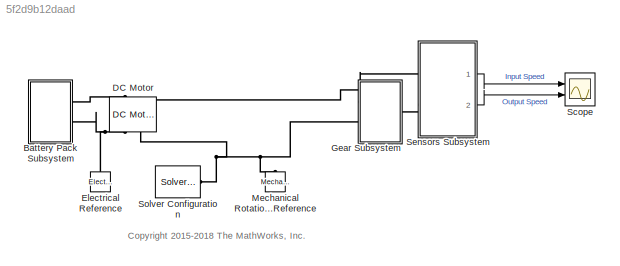
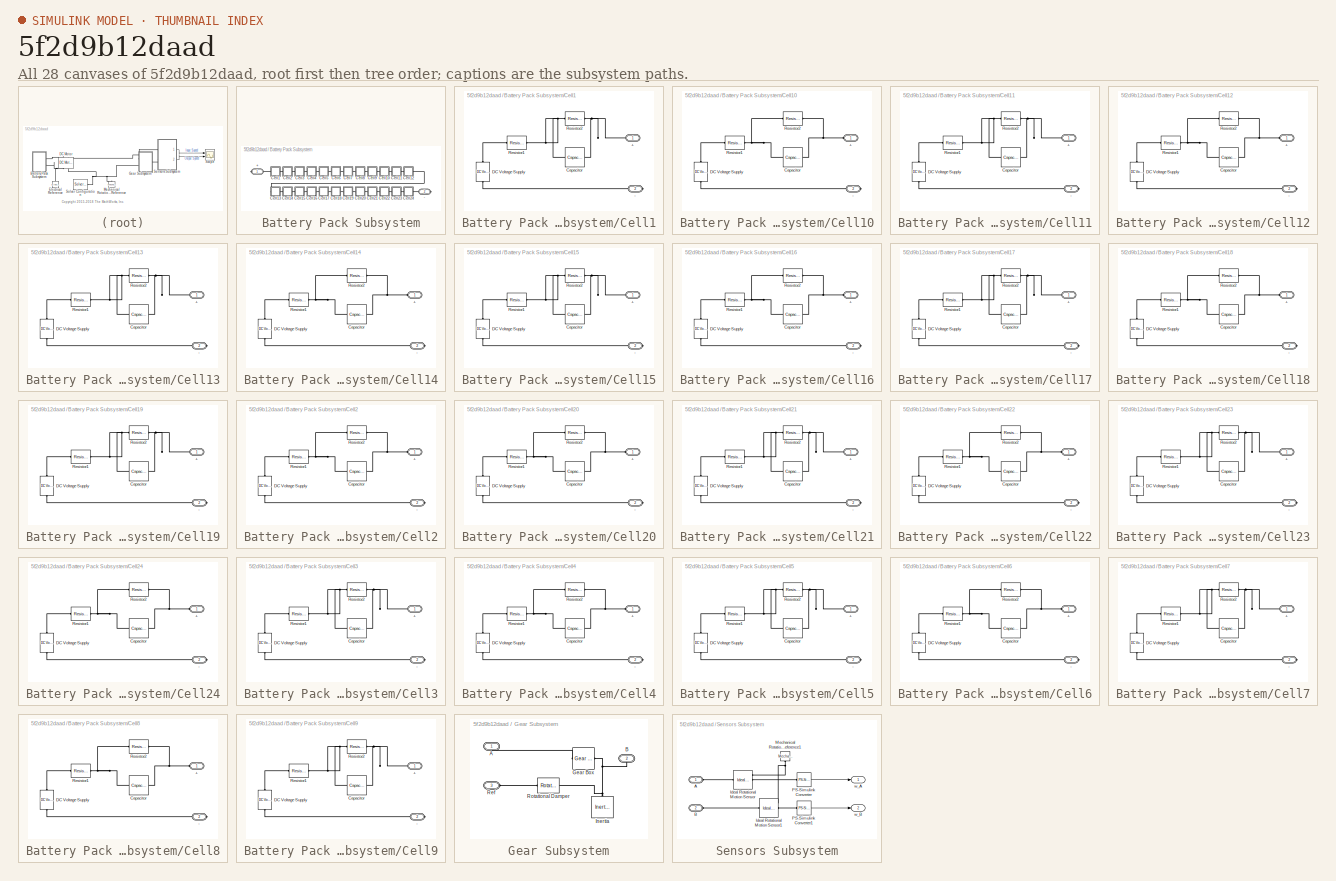
[diagram: thumbnail index - all 28 canvases of the model, root first then tree order]
MODEL slx_5f2d9b12daad
KIND model
CONFIG AbsTol = 1e-3
CONFIG EnableMultiTasking = on
CONFIG FixedStep = auto
CONFIG MaxStep = auto
CONFIG MinStep = auto
CONFIG RelTol = 1e-3
CONFIG SampleTimeConstraint = Unconstrained
CONFIG Solver = ode23t
CONFIG SolverName = ode23t
CONFIG StartTime = 0.0
CONFIG StopTime = 10.0
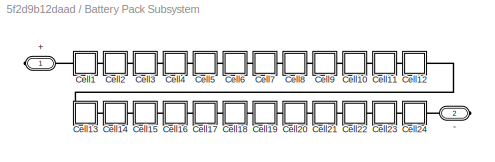
BLOCK [SubSystem] Battery Pack Subsystem
  Ports = [0, 0, 0, 0, 0, 0, 2]
  RequestExecContextInheritance = off
  Variant = off
BLOCK [PMIOPort] Battery Pack Subsystem/+
  Port = 1
  Side = Right
BLOCK [PMIOPort] Battery Pack Subsystem/-
  Port = 2
  Side = Right
BLOCK [SubSystem] Battery Pack Subsystem/Cell1
  Ports = [0, 0, 0, 0, 0, 1, 1]
  RequestExecContextInheritance = off
  Variant = off
BLOCK [PMIOPort] Battery Pack Subsystem/Cell1/+
  Port = 1
  Side = Left
BLOCK [PMIOPort] Battery Pack Subsystem/Cell1/-
  Port = 2
  Side = Right
BLOCK [Reference] Battery Pack Subsystem/Cell1/Capacitor  REF=fl_lib/Electrical/Electrical Elements/Capacitor
  Ports = [0, 0, 0, 0, 0, 1, 1]
  SourceBlock = fl_lib/Electrical/Electrical Elements/Capacitor
  SourceProductBaseCode = SS
  SourceProductName = Simscape
  SourceType = Capacitor
BLOCK [Reference] Battery Pack Subsystem/Cell1/DC Voltage Supply  REF=fl_lib/Electrical/Electrical Sources/DC Voltage Source
  Ports = [0, 0, 0, 0, 0, 1, 1]
  SourceBlock = fl_lib/Electrical/Electrical Sources/DC Voltage Source
  SourceProductBaseCode = SS
  SourceProductName = Simscape
  SourceType = DC Voltage Source
BLOCK [Reference] Battery Pack Subsystem/Cell1/Resistor1  REF=fl_lib/Electrical/Electrical Elements/Resistor
  Ports = [0, 0, 0, 0, 0, 1, 1]
  SourceBlock = fl_lib/Electrical/Electrical Elements/Resistor
  SourceProductBaseCode = SS
  SourceProductName = Simscape
  SourceType = Resistor
BLOCK [Reference] Battery Pack Subsystem/Cell1/Resistor2  REF=fl_lib/Electrical/Electrical Elements/Resistor
  Ports = [0, 0, 0, 0, 0, 1, 1]
  SourceBlock = fl_lib/Electrical/Electrical Elements/Resistor
  SourceProductBaseCode = SS
  SourceProductName = Simscape
  SourceType = Resistor
BLOCK [SubSystem] Battery Pack Subsystem/Cell10
  Ports = [0, 0, 0, 0, 0, 1, 1]
  RequestExecContextInheritance = off
  Variant = off
BLOCK [PMIOPort] Battery Pack Subsystem/Cell10/+
  Port = 1
  Side = Left
BLOCK [PMIOPort] Battery Pack Subsystem/Cell10/-
  Port = 2
  Side = Right
BLOCK [Reference] Battery Pack Subsystem/Cell10/Capacitor  REF=fl_lib/Electrical/Electrical Elements/Capacitor
  Ports = [0, 0, 0, 0, 0, 1, 1]
  SourceBlock = fl_lib/Electrical/Electrical Elements/Capacitor
  SourceProductBaseCode = SS
  SourceProductName = Simscape
  SourceType = Capacitor
BLOCK [Reference] Battery Pack Subsystem/Cell10/DC Voltage Supply  REF=fl_lib/Electrical/Electrical Sources/DC Voltage Source
  Ports = [0, 0, 0, 0, 0, 1, 1]
  SourceBlock = fl_lib/Electrical/Electrical Sources/DC Voltage Source
  SourceProductBaseCode = SS
  SourceProductName = Simscape
  SourceType = DC Voltage Source
BLOCK [Reference] Battery Pack Subsystem/Cell10/Resistor1  REF=fl_lib/Electrical/Electrical Elements/Resistor
  Ports = [0, 0, 0, 0, 0, 1, 1]
  SourceBlock = fl_lib/Electrical/Electrical Elements/Resistor
  SourceProductBaseCode = SS
  SourceProductName = Simscape
  SourceType = Resistor
BLOCK [Reference] Battery Pack Subsystem/Cell10/Resistor2  REF=fl_lib/Electrical/Electrical Elements/Resistor
  Ports = [0, 0, 0, 0, 0, 1, 1]
  SourceBlock = fl_lib/Electrical/Electrical Elements/Resistor
  SourceProductBaseCode = SS
  SourceProductName = Simscape
  SourceType = Resistor
BLOCK [SubSystem] Battery Pack Subsystem/Cell11
  Ports = [0, 0, 0, 0, 0, 1, 1]
  RequestExecContextInheritance = off
  Variant = off
BLOCK [PMIOPort] Battery Pack Subsystem/Cell11/+
  Port = 1
  Side = Left
BLOCK [PMIOPort] Battery Pack Subsystem/Cell11/-
  Port = 2
  Side = Right
BLOCK [Reference] Battery Pack Subsystem/Cell11/Capacitor  REF=fl_lib/Electrical/Electrical Elements/Capacitor
  Ports = [0, 0, 0, 0, 0, 1, 1]
  SourceBlock = fl_lib/Electrical/Electrical Elements/Capacitor
  SourceProductBaseCode = SS
  SourceProductName = Simscape
  SourceType = Capacitor
BLOCK [Reference] Battery Pack Subsystem/Cell11/DC Voltage Supply  REF=fl_lib/Electrical/Electrical Sources/DC Voltage Source
  Ports = [0, 0, 0, 0, 0, 1, 1]
  SourceBlock = fl_lib/Electrical/Electrical Sources/DC Voltage Source
  SourceProductBaseCode = SS
  SourceProductName = Simscape
  SourceType = DC Voltage Source
BLOCK [Reference] Battery Pack Subsystem/Cell11/Resistor1  REF=fl_lib/Electrical/Electrical Elements/Resistor
  Ports = [0, 0, 0, 0, 0, 1, 1]
  SourceBlock = fl_lib/Electrical/Electrical Elements/Resistor
  SourceProductBaseCode = SS
  SourceProductName = Simscape
  SourceType = Resistor
BLOCK [Reference] Battery Pack Subsystem/Cell11/Resistor2  REF=fl_lib/Electrical/Electrical Elements/Resistor
  Ports = [0, 0, 0, 0, 0, 1, 1]
  SourceBlock = fl_lib/Electrical/Electrical Elements/Resistor
  SourceProductBaseCode = SS
  SourceProductName = Simscape
  SourceType = Resistor
BLOCK [SubSystem] Battery Pack Subsystem/Cell12
  Ports = [0, 0, 0, 0, 0, 1, 1]
  RequestExecContextInheritance = off
  Variant = off
BLOCK [PMIOPort] Battery Pack Subsystem/Cell12/+
  Port = 1
  Side = Left
BLOCK [PMIOPort] Battery Pack Subsystem/Cell12/-
  Port = 2
  Side = Right
BLOCK [Reference] Battery Pack Subsystem/Cell12/Capacitor  REF=fl_lib/Electrical/Electrical Elements/Capacitor
  Ports = [0, 0, 0, 0, 0, 1, 1]
  SourceBlock = fl_lib/Electrical/Electrical Elements/Capacitor
  SourceProductBaseCode = SS
  SourceProductName = Simscape
  SourceType = Capacitor
BLOCK [Reference] Battery Pack Subsystem/Cell12/DC Voltage Supply  REF=fl_lib/Electrical/Electrical Sources/DC Voltage Source
  Ports = [0, 0, 0, 0, 0, 1, 1]
  SourceBlock = fl_lib/Electrical/Electrical Sources/DC Voltage Source
  SourceProductBaseCode = SS
  SourceProductName = Simscape
  SourceType = DC Voltage Source
BLOCK [Reference] Battery Pack Subsystem/Cell12/Resistor1  REF=fl_lib/Electrical/Electrical Elements/Resistor
  Ports = [0, 0, 0, 0, 0, 1, 1]
  SourceBlock = fl_lib/Electrical/Electrical Elements/Resistor
  SourceProductBaseCode = SS
  SourceProductName = Simscape
  SourceType = Resistor
BLOCK [Reference] Battery Pack Subsystem/Cell12/Resistor2  REF=fl_lib/Electrical/Electrical Elements/Resistor
  Ports = [0, 0, 0, 0, 0, 1, 1]
  SourceBlock = fl_lib/Electrical/Electrical Elements/Resistor
  SourceProductBaseCode = SS
  SourceProductName = Simscape
  SourceType = Resistor
BLOCK [SubSystem] Battery Pack Subsystem/Cell13
  Ports = [0, 0, 0, 0, 0, 1, 1]
  RequestExecContextInheritance = off
  Variant = off
BLOCK [PMIOPort] Battery Pack Subsystem/Cell13/+
  Port = 1
  Side = Left
BLOCK [PMIOPort] Battery Pack Subsystem/Cell13/-
  Port = 2
  Side = Right
BLOCK [Reference] Battery Pack Subsystem/Cell13/Capacitor  REF=fl_lib/Electrical/Electrical Elements/Capacitor
  Ports = [0, 0, 0, 0, 0, 1, 1]
  SourceBlock = fl_lib/Electrical/Electrical Elements/Capacitor
  SourceProductBaseCode = SS
  SourceProductName = Simscape
  SourceType = Capacitor
BLOCK [Reference] Battery Pack Subsystem/Cell13/DC Voltage Supply  REF=fl_lib/Electrical/Electrical Sources/DC Voltage Source
  Ports = [0, 0, 0, 0, 0, 1, 1]
  SourceBlock = fl_lib/Electrical/Electrical Sources/DC Voltage Source
  SourceProductBaseCode = SS
  SourceProductName = Simscape
  SourceType = DC Voltage Source
BLOCK [Reference] Battery Pack Subsystem/Cell13/Resistor1  REF=fl_lib/Electrical/Electrical Elements/Resistor
  Ports = [0, 0, 0, 0, 0, 1, 1]
  SourceBlock = fl_lib/Electrical/Electrical Elements/Resistor
  SourceProductBaseCode = SS
  SourceProductName = Simscape
  SourceType = Resistor
BLOCK [Reference] Battery Pack Subsystem/Cell13/Resistor2  REF=fl_lib/Electrical/Electrical Elements/Resistor
  Ports = [0, 0, 0, 0, 0, 1, 1]
  SourceBlock = fl_lib/Electrical/Electrical Elements/Resistor
  SourceProductBaseCode = SS
  SourceProductName = Simscape
  SourceType = Resistor
BLOCK [SubSystem] Battery Pack Subsystem/Cell14
  Ports = [0, 0, 0, 0, 0, 1, 1]
  RequestExecContextInheritance = off
  Variant = off
BLOCK [PMIOPort] Battery Pack Subsystem/Cell14/+
  Port = 1
  Side = Left
BLOCK [PMIOPort] Battery Pack Subsystem/Cell14/-
  Port = 2
  Side = Right
BLOCK [Reference] Battery Pack Subsystem/Cell14/Capacitor  REF=fl_lib/Electrical/Electrical Elements/Capacitor
  Ports = [0, 0, 0, 0, 0, 1, 1]
  SourceBlock = fl_lib/Electrical/Electrical Elements/Capacitor
  SourceProductBaseCode = SS
  SourceProductName = Simscape
  SourceType = Capacitor
BLOCK [Reference] Battery Pack Subsystem/Cell14/DC Voltage Supply  REF=fl_lib/Electrical/Electrical Sources/DC Voltage Source
  Ports = [0, 0, 0, 0, 0, 1, 1]
  SourceBlock = fl_lib/Electrical/Electrical Sources/DC Voltage Source
  SourceProductBaseCode = SS
  SourceProductName = Simscape
  SourceType = DC Voltage Source
BLOCK [Reference] Battery Pack Subsystem/Cell14/Resistor1  REF=fl_lib/Electrical/Electrical Elements/Resistor
  Ports = [0, 0, 0, 0, 0, 1, 1]
  SourceBlock = fl_lib/Electrical/Electrical Elements/Resistor
  SourceProductBaseCode = SS
  SourceProductName = Simscape
  SourceType = Resistor
BLOCK [Reference] Battery Pack Subsystem/Cell14/Resistor2  REF=fl_lib/Electrical/Electrical Elements/Resistor
  Ports = [0, 0, 0, 0, 0, 1, 1]
  SourceBlock = fl_lib/Electrical/Electrical Elements/Resistor
  SourceProductBaseCode = SS
  SourceProductName = Simscape
  SourceType = Resistor
BLOCK [SubSystem] Battery Pack Subsystem/Cell15
  Ports = [0, 0, 0, 0, 0, 1, 1]
  RequestExecContextInheritance = off
  Variant = off
BLOCK [PMIOPort] Battery Pack Subsystem/Cell15/+
  Port = 1
  Side = Left
BLOCK [PMIOPort] Battery Pack Subsystem/Cell15/-
  Port = 2
  Side = Right
BLOCK [Reference] Battery Pack Subsystem/Cell15/Capacitor  REF=fl_lib/Electrical/Electrical Elements/Capacitor
  Ports = [0, 0, 0, 0, 0, 1, 1]
  SourceBlock = fl_lib/Electrical/Electrical Elements/Capacitor
  SourceProductBaseCode = SS
  SourceProductName = Simscape
  SourceType = Capacitor
BLOCK [Reference] Battery Pack Subsystem/Cell15/DC Voltage Supply  REF=fl_lib/Electrical/Electrical Sources/DC Voltage Source
  Ports = [0, 0, 0, 0, 0, 1, 1]
  SourceBlock = fl_lib/Electrical/Electrical Sources/DC Voltage Source
  SourceProductBaseCode = SS
  SourceProductName = Simscape
  SourceType = DC Voltage Source
BLOCK [Reference] Battery Pack Subsystem/Cell15/Resistor1  REF=fl_lib/Electrical/Electrical Elements/Resistor
  Ports = [0, 0, 0, 0, 0, 1, 1]
  SourceBlock = fl_lib/Electrical/Electrical Elements/Resistor
  SourceProductBaseCode = SS
  SourceProductName = Simscape
  SourceType = Resistor
BLOCK [Reference] Battery Pack Subsystem/Cell15/Resistor2  REF=fl_lib/Electrical/Electrical Elements/Resistor
  Ports = [0, 0, 0, 0, 0, 1, 1]
  SourceBlock = fl_lib/Electrical/Electrical Elements/Resistor
  SourceProductBaseCode = SS
  SourceProductName = Simscape
  SourceType = Resistor
BLOCK [SubSystem] Battery Pack Subsystem/Cell16
  Ports = [0, 0, 0, 0, 0, 1, 1]
  RequestExecContextInheritance = off
  Variant = off
BLOCK [PMIOPort] Battery Pack Subsystem/Cell16/+
  Port = 1
  Side = Left
BLOCK [PMIOPort] Battery Pack Subsystem/Cell16/-
  Port = 2
  Side = Right
BLOCK [Reference] Battery Pack Subsystem/Cell16/Capacitor  REF=fl_lib/Electrical/Electrical Elements/Capacitor
  Ports = [0, 0, 0, 0, 0, 1, 1]
  SourceBlock = fl_lib/Electrical/Electrical Elements/Capacitor
  SourceProductBaseCode = SS
  SourceProductName = Simscape
  SourceType = Capacitor
BLOCK [Reference] Battery Pack Subsystem/Cell16/DC Voltage Supply  REF=fl_lib/Electrical/Electrical Sources/DC Voltage Source
  Ports = [0, 0, 0, 0, 0, 1, 1]
  SourceBlock = fl_lib/Electrical/Electrical Sources/DC Voltage Source
  SourceProductBaseCode = SS
  SourceProductName = Simscape
  SourceType = DC Voltage Source
BLOCK [Reference] Battery Pack Subsystem/Cell16/Resistor1  REF=fl_lib/Electrical/Electrical Elements/Resistor
  Ports = [0, 0, 0, 0, 0, 1, 1]
  SourceBlock = fl_lib/Electrical/Electrical Elements/Resistor
  SourceProductBaseCode = SS
  SourceProductName = Simscape
  SourceType = Resistor
BLOCK [Reference] Battery Pack Subsystem/Cell16/Resistor2  REF=fl_lib/Electrical/Electrical Elements/Resistor
  Ports = [0, 0, 0, 0, 0, 1, 1]
  SourceBlock = fl_lib/Electrical/Electrical Elements/Resistor
  SourceProductBaseCode = SS
  SourceProductName = Simscape
  SourceType = Resistor
BLOCK [SubSystem] Battery Pack Subsystem/Cell17
  Ports = [0, 0, 0, 0, 0, 1, 1]
  RequestExecContextInheritance = off
  Variant = off
BLOCK [PMIOPort] Battery Pack Subsystem/Cell17/+
  Port = 1
  Side = Left
BLOCK [PMIOPort] Battery Pack Subsystem/Cell17/-
  Port = 2
  Side = Right
BLOCK [Reference] Battery Pack Subsystem/Cell17/Capacitor  REF=fl_lib/Electrical/Electrical Elements/Capacitor
  Ports = [0, 0, 0, 0, 0, 1, 1]
  SourceBlock = fl_lib/Electrical/Electrical Elements/Capacitor
  SourceProductBaseCode = SS
  SourceProductName = Simscape
  SourceType = Capacitor
BLOCK [Reference] Battery Pack Subsystem/Cell17/DC Voltage Supply  REF=fl_lib/Electrical/Electrical Sources/DC Voltage Source
  Ports = [0, 0, 0, 0, 0, 1, 1]
  SourceBlock = fl_lib/Electrical/Electrical Sources/DC Voltage Source
  SourceProductBaseCode = SS
  SourceProductName = Simscape
  SourceType = DC Voltage Source
BLOCK [Reference] Battery Pack Subsystem/Cell17/Resistor1  REF=fl_lib/Electrical/Electrical Elements/Resistor
  Ports = [0, 0, 0, 0, 0, 1, 1]
  SourceBlock = fl_lib/Electrical/Electrical Elements/Resistor
  SourceProductBaseCode = SS
  SourceProductName = Simscape
  SourceType = Resistor
BLOCK [Reference] Battery Pack Subsystem/Cell17/Resistor2  REF=fl_lib/Electrical/Electrical Elements/Resistor
  Ports = [0, 0, 0, 0, 0, 1, 1]
  SourceBlock = fl_lib/Electrical/Electrical Elements/Resistor
  SourceProductBaseCode = SS
  SourceProductName = Simscape
  SourceType = Resistor
BLOCK [SubSystem] Battery Pack Subsystem/Cell18
  Ports = [0, 0, 0, 0, 0, 1, 1]
  RequestExecContextInheritance = off
  Variant = off
BLOCK [PMIOPort] Battery Pack Subsystem/Cell18/+
  Port = 1
  Side = Left
BLOCK [PMIOPort] Battery Pack Subsystem/Cell18/-
  Port = 2
  Side = Right
BLOCK [Reference] Battery Pack Subsystem/Cell18/Capacitor  REF=fl_lib/Electrical/Electrical Elements/Capacitor
  Ports = [0, 0, 0, 0, 0, 1, 1]
  SourceBlock = fl_lib/Electrical/Electrical Elements/Capacitor
  SourceProductBaseCode = SS
  SourceProductName = Simscape
  SourceType = Capacitor
BLOCK [Reference] Battery Pack Subsystem/Cell18/DC Voltage Supply  REF=fl_lib/Electrical/Electrical Sources/DC Voltage Source
  Ports = [0, 0, 0, 0, 0, 1, 1]
  SourceBlock = fl_lib/Electrical/Electrical Sources/DC Voltage Source
  SourceProductBaseCode = SS
  SourceProductName = Simscape
  SourceType = DC Voltage Source
BLOCK [Reference] Battery Pack Subsystem/Cell18/Resistor1  REF=fl_lib/Electrical/Electrical Elements/Resistor
  Ports = [0, 0, 0, 0, 0, 1, 1]
  SourceBlock = fl_lib/Electrical/Electrical Elements/Resistor
  SourceProductBaseCode = SS
  SourceProductName = Simscape
  SourceType = Resistor
BLOCK [Reference] Battery Pack Subsystem/Cell18/Resistor2  REF=fl_lib/Electrical/Electrical Elements/Resistor
  Ports = [0, 0, 0, 0, 0, 1, 1]
  SourceBlock = fl_lib/Electrical/Electrical Elements/Resistor
  SourceProductBaseCode = SS
  SourceProductName = Simscape
  SourceType = Resistor
BLOCK [SubSystem] Battery Pack Subsystem/Cell19
  Ports = [0, 0, 0, 0, 0, 1, 1]
  RequestExecContextInheritance = off
  Variant = off
BLOCK [PMIOPort] Battery Pack Subsystem/Cell19/+
  Port = 1
  Side = Left
BLOCK [PMIOPort] Battery Pack Subsystem/Cell19/-
  Port = 2
  Side = Right
BLOCK [Reference] Battery Pack Subsystem/Cell19/Capacitor  REF=fl_lib/Electrical/Electrical Elements/Capacitor
  Ports = [0, 0, 0, 0, 0, 1, 1]
  SourceBlock = fl_lib/Electrical/Electrical Elements/Capacitor
  SourceProductBaseCode = SS
  SourceProductName = Simscape
  SourceType = Capacitor
BLOCK [Reference] Battery Pack Subsystem/Cell19/DC Voltage Supply  REF=fl_lib/Electrical/Electrical Sources/DC Voltage Source
  Ports = [0, 0, 0, 0, 0, 1, 1]
  SourceBlock = fl_lib/Electrical/Electrical Sources/DC Voltage Source
  SourceProductBaseCode = SS
  SourceProductName = Simscape
  SourceType = DC Voltage Source
BLOCK [Reference] Battery Pack Subsystem/Cell19/Resistor1  REF=fl_lib/Electrical/Electrical Elements/Resistor
  Ports = [0, 0, 0, 0, 0, 1, 1]
  SourceBlock = fl_lib/Electrical/Electrical Elements/Resistor
  SourceProductBaseCode = SS
  SourceProductName = Simscape
  SourceType = Resistor
BLOCK [Reference] Battery Pack Subsystem/Cell19/Resistor2  REF=fl_lib/Electrical/Electrical Elements/Resistor
  Ports = [0, 0, 0, 0, 0, 1, 1]
  SourceBlock = fl_lib/Electrical/Electrical Elements/Resistor
  SourceProductBaseCode = SS
  SourceProductName = Simscape
  SourceType = Resistor
BLOCK [SubSystem] Battery Pack Subsystem/Cell2
  Ports = [0, 0, 0, 0, 0, 1, 1]
  RequestExecContextInheritance = off
  Variant = off
BLOCK [PMIOPort] Battery Pack Subsystem/Cell2/+
  Port = 1
  Side = Left
BLOCK [PMIOPort] Battery Pack Subsystem/Cell2/-
  Port = 2
  Side = Right
BLOCK [Reference] Battery Pack Subsystem/Cell2/Capacitor  REF=fl_lib/Electrical/Electrical Elements/Capacitor
  Ports = [0, 0, 0, 0, 0, 1, 1]
  SourceBlock = fl_lib/Electrical/Electrical Elements/Capacitor
  SourceProductBaseCode = SS
  SourceProductName = Simscape
  SourceType = Capacitor
BLOCK [Reference] Battery Pack Subsystem/Cell2/DC Voltage Supply  REF=fl_lib/Electrical/Electrical Sources/DC Voltage Source
  Ports = [0, 0, 0, 0, 0, 1, 1]
  SourceBlock = fl_lib/Electrical/Electrical Sources/DC Voltage Source
  SourceProductBaseCode = SS
  SourceProductName = Simscape
  SourceType = DC Voltage Source
BLOCK [Reference] Battery Pack Subsystem/Cell2/Resistor1  REF=fl_lib/Electrical/Electrical Elements/Resistor
  Ports = [0, 0, 0, 0, 0, 1, 1]
  SourceBlock = fl_lib/Electrical/Electrical Elements/Resistor
  SourceProductBaseCode = SS
  SourceProductName = Simscape
  SourceType = Resistor
BLOCK [Reference] Battery Pack Subsystem/Cell2/Resistor2  REF=fl_lib/Electrical/Electrical Elements/Resistor
  Ports = [0, 0, 0, 0, 0, 1, 1]
  SourceBlock = fl_lib/Electrical/Electrical Elements/Resistor
  SourceProductBaseCode = SS
  SourceProductName = Simscape
  SourceType = Resistor
BLOCK [SubSystem] Battery Pack Subsystem/Cell20
  Ports = [0, 0, 0, 0, 0, 1, 1]
  RequestExecContextInheritance = off
  Variant = off
BLOCK [PMIOPort] Battery Pack Subsystem/Cell20/+
  Port = 1
  Side = Left
BLOCK [PMIOPort] Battery Pack Subsystem/Cell20/-
  Port = 2
  Side = Right
BLOCK [Reference] Battery Pack Subsystem/Cell20/Capacitor  REF=fl_lib/Electrical/Electrical Elements/Capacitor
  Ports = [0, 0, 0, 0, 0, 1, 1]
  SourceBlock = fl_lib/Electrical/Electrical Elements/Capacitor
  SourceProductBaseCode = SS
  SourceProductName = Simscape
  SourceType = Capacitor
BLOCK [Reference] Battery Pack Subsystem/Cell20/DC Voltage Supply  REF=fl_lib/Electrical/Electrical Sources/DC Voltage Source
  Ports = [0, 0, 0, 0, 0, 1, 1]
  SourceBlock = fl_lib/Electrical/Electrical Sources/DC Voltage Source
  SourceProductBaseCode = SS
  SourceProductName = Simscape
  SourceType = DC Voltage Source
BLOCK [Reference] Battery Pack Subsystem/Cell20/Resistor1  REF=fl_lib/Electrical/Electrical Elements/Resistor
  Ports = [0, 0, 0, 0, 0, 1, 1]
  SourceBlock = fl_lib/Electrical/Electrical Elements/Resistor
  SourceProductBaseCode = SS
  SourceProductName = Simscape
  SourceType = Resistor
BLOCK [Reference] Battery Pack Subsystem/Cell20/Resistor2  REF=fl_lib/Electrical/Electrical Elements/Resistor
  Ports = [0, 0, 0, 0, 0, 1, 1]
  SourceBlock = fl_lib/Electrical/Electrical Elements/Resistor
  SourceProductBaseCode = SS
  SourceProductName = Simscape
  SourceType = Resistor
BLOCK [SubSystem] Battery Pack Subsystem/Cell21
  Ports = [0, 0, 0, 0, 0, 1, 1]
  RequestExecContextInheritance = off
  Variant = off
BLOCK [PMIOPort] Battery Pack Subsystem/Cell21/+
  Port = 1
  Side = Left
BLOCK [PMIOPort] Battery Pack Subsystem/Cell21/-
  Port = 2
  Side = Right
BLOCK [Reference] Battery Pack Subsystem/Cell21/Capacitor  REF=fl_lib/Electrical/Electrical Elements/Capacitor
  Ports = [0, 0, 0, 0, 0, 1, 1]
  SourceBlock = fl_lib/Electrical/Electrical Elements/Capacitor
  SourceProductBaseCode = SS
  SourceProductName = Simscape
  SourceType = Capacitor
BLOCK [Reference] Battery Pack Subsystem/Cell21/DC Voltage Supply  REF=fl_lib/Electrical/Electrical Sources/DC Voltage Source
  Ports = [0, 0, 0, 0, 0, 1, 1]
  SourceBlock = fl_lib/Electrical/Electrical Sources/DC Voltage Source
  SourceProductBaseCode = SS
  SourceProductName = Simscape
  SourceType = DC Voltage Source
BLOCK [Reference] Battery Pack Subsystem/Cell21/Resistor1  REF=fl_lib/Electrical/Electrical Elements/Resistor
  Ports = [0, 0, 0, 0, 0, 1, 1]
  SourceBlock = fl_lib/Electrical/Electrical Elements/Resistor
  SourceProductBaseCode = SS
  SourceProductName = Simscape
  SourceType = Resistor
BLOCK [Reference] Battery Pack Subsystem/Cell21/Resistor2  REF=fl_lib/Electrical/Electrical Elements/Resistor
  Ports = [0, 0, 0, 0, 0, 1, 1]
  SourceBlock = fl_lib/Electrical/Electrical Elements/Resistor
  SourceProductBaseCode = SS
  SourceProductName = Simscape
  SourceType = Resistor
BLOCK [SubSystem] Battery Pack Subsystem/Cell22
  Ports = [0, 0, 0, 0, 0, 1, 1]
  RequestExecContextInheritance = off
  Variant = off
BLOCK [PMIOPort] Battery Pack Subsystem/Cell22/+
  Port = 1
  Side = Left
BLOCK [PMIOPort] Battery Pack Subsystem/Cell22/-
  Port = 2
  Side = Right
BLOCK [Reference] Battery Pack Subsystem/Cell22/Capacitor  REF=fl_lib/Electrical/Electrical Elements/Capacitor
  Ports = [0, 0, 0, 0, 0, 1, 1]
  SourceBlock = fl_lib/Electrical/Electrical Elements/Capacitor
  SourceProductBaseCode = SS
  SourceProductName = Simscape
  SourceType = Capacitor
BLOCK [Reference] Battery Pack Subsystem/Cell22/DC Voltage Supply  REF=fl_lib/Electrical/Electrical Sources/DC Voltage Source
  Ports = [0, 0, 0, 0, 0, 1, 1]
  SourceBlock = fl_lib/Electrical/Electrical Sources/DC Voltage Source
  SourceProductBaseCode = SS
  SourceProductName = Simscape
  SourceType = DC Voltage Source
BLOCK [Reference] Battery Pack Subsystem/Cell22/Resistor1  REF=fl_lib/Electrical/Electrical Elements/Resistor
  Ports = [0, 0, 0, 0, 0, 1, 1]
  SourceBlock = fl_lib/Electrical/Electrical Elements/Resistor
  SourceProductBaseCode = SS
  SourceProductName = Simscape
  SourceType = Resistor
BLOCK [Reference] Battery Pack Subsystem/Cell22/Resistor2  REF=fl_lib/Electrical/Electrical Elements/Resistor
  Ports = [0, 0, 0, 0, 0, 1, 1]
  SourceBlock = fl_lib/Electrical/Electrical Elements/Resistor
  SourceProductBaseCode = SS
  SourceProductName = Simscape
  SourceType = Resistor
BLOCK [SubSystem] Battery Pack Subsystem/Cell23
  Ports = [0, 0, 0, 0, 0, 1, 1]
  RequestExecContextInheritance = off
  Variant = off
BLOCK [PMIOPort] Battery Pack Subsystem/Cell23/+
  Port = 1
  Side = Left
BLOCK [PMIOPort] Battery Pack Subsystem/Cell23/-
  Port = 2
  Side = Right
BLOCK [Reference] Battery Pack Subsystem/Cell23/Capacitor  REF=fl_lib/Electrical/Electrical Elements/Capacitor
  Ports = [0, 0, 0, 0, 0, 1, 1]
  SourceBlock = fl_lib/Electrical/Electrical Elements/Capacitor
  SourceProductBaseCode = SS
  SourceProductName = Simscape
  SourceType = Capacitor
BLOCK [Reference] Battery Pack Subsystem/Cell23/DC Voltage Supply  REF=fl_lib/Electrical/Electrical Sources/DC Voltage Source
  Ports = [0, 0, 0, 0, 0, 1, 1]
  SourceBlock = fl_lib/Electrical/Electrical Sources/DC Voltage Source
  SourceProductBaseCode = SS
  SourceProductName = Simscape
  SourceType = DC Voltage Source
BLOCK [Reference] Battery Pack Subsystem/Cell23/Resistor1  REF=fl_lib/Electrical/Electrical Elements/Resistor
  Ports = [0, 0, 0, 0, 0, 1, 1]
  SourceBlock = fl_lib/Electrical/Electrical Elements/Resistor
  SourceProductBaseCode = SS
  SourceProductName = Simscape
  SourceType = Resistor
BLOCK [Reference] Battery Pack Subsystem/Cell23/Resistor2  REF=fl_lib/Electrical/Electrical Elements/Resistor
  Ports = [0, 0, 0, 0, 0, 1, 1]
  SourceBlock = fl_lib/Electrical/Electrical Elements/Resistor
  SourceProductBaseCode = SS
  SourceProductName = Simscape
  SourceType = Resistor
BLOCK [SubSystem] Battery Pack Subsystem/Cell24
  Ports = [0, 0, 0, 0, 0, 1, 1]
  RequestExecContextInheritance = off
  Variant = off
BLOCK [PMIOPort] Battery Pack Subsystem/Cell24/+
  Port = 1
  Side = Left
BLOCK [PMIOPort] Battery Pack Subsystem/Cell24/-
  Port = 2
  Side = Right
BLOCK [Reference] Battery Pack Subsystem/Cell24/Capacitor  REF=fl_lib/Electrical/Electrical Elements/Capacitor
  Ports = [0, 0, 0, 0, 0, 1, 1]
  SourceBlock = fl_lib/Electrical/Electrical Elements/Capacitor
  SourceProductBaseCode = SS
  SourceProductName = Simscape
  SourceType = Capacitor
BLOCK [Reference] Battery Pack Subsystem/Cell24/DC Voltage Supply  REF=fl_lib/Electrical/Electrical Sources/DC Voltage Source
  Ports = [0, 0, 0, 0, 0, 1, 1]
  SourceBlock = fl_lib/Electrical/Electrical Sources/DC Voltage Source
  SourceProductBaseCode = SS
  SourceProductName = Simscape
  SourceType = DC Voltage Source
BLOCK [Reference] Battery Pack Subsystem/Cell24/Resistor1  REF=fl_lib/Electrical/Electrical Elements/Resistor
  Ports = [0, 0, 0, 0, 0, 1, 1]
  SourceBlock = fl_lib/Electrical/Electrical Elements/Resistor
  SourceProductBaseCode = SS
  SourceProductName = Simscape
  SourceType = Resistor
BLOCK [Reference] Battery Pack Subsystem/Cell24/Resistor2  REF=fl_lib/Electrical/Electrical Elements/Resistor
  Ports = [0, 0, 0, 0, 0, 1, 1]
  SourceBlock = fl_lib/Electrical/Electrical Elements/Resistor
  SourceProductBaseCode = SS
  SourceProductName = Simscape
  SourceType = Resistor
BLOCK [SubSystem] Battery Pack Subsystem/Cell3
  Ports = [0, 0, 0, 0, 0, 1, 1]
  RequestExecContextInheritance = off
  Variant = off
BLOCK [PMIOPort] Battery Pack Subsystem/Cell3/+
  Port = 1
  Side = Left
BLOCK [PMIOPort] Battery Pack Subsystem/Cell3/-
  Port = 2
  Side = Right
BLOCK [Reference] Battery Pack Subsystem/Cell3/Capacitor  REF=fl_lib/Electrical/Electrical Elements/Capacitor
  Ports = [0, 0, 0, 0, 0, 1, 1]
  SourceBlock = fl_lib/Electrical/Electrical Elements/Capacitor
  SourceProductBaseCode = SS
  SourceProductName = Simscape
  SourceType = Capacitor
BLOCK [Reference] Battery Pack Subsystem/Cell3/DC Voltage Supply  REF=fl_lib/Electrical/Electrical Sources/DC Voltage Source
  Ports = [0, 0, 0, 0, 0, 1, 1]
  SourceBlock = fl_lib/Electrical/Electrical Sources/DC Voltage Source
  SourceProductBaseCode = SS
  SourceProductName = Simscape
  SourceType = DC Voltage Source
BLOCK [Reference] Battery Pack Subsystem/Cell3/Resistor1  REF=fl_lib/Electrical/Electrical Elements/Resistor
  Ports = [0, 0, 0, 0, 0, 1, 1]
  SourceBlock = fl_lib/Electrical/Electrical Elements/Resistor
  SourceProductBaseCode = SS
  SourceProductName = Simscape
  SourceType = Resistor
BLOCK [Reference] Battery Pack Subsystem/Cell3/Resistor2  REF=fl_lib/Electrical/Electrical Elements/Resistor
  Ports = [0, 0, 0, 0, 0, 1, 1]
  SourceBlock = fl_lib/Electrical/Electrical Elements/Resistor
  SourceProductBaseCode = SS
  SourceProductName = Simscape
  SourceType = Resistor
BLOCK [SubSystem] Battery Pack Subsystem/Cell4
  Ports = [0, 0, 0, 0, 0, 1, 1]
  RequestExecContextInheritance = off
  Variant = off
BLOCK [PMIOPort] Battery Pack Subsystem/Cell4/+
  Port = 1
  Side = Left
BLOCK [PMIOPort] Battery Pack Subsystem/Cell4/-
  Port = 2
  Side = Right
BLOCK [Reference] Battery Pack Subsystem/Cell4/Capacitor  REF=fl_lib/Electrical/Electrical Elements/Capacitor
  Ports = [0, 0, 0, 0, 0, 1, 1]
  SourceBlock = fl_lib/Electrical/Electrical Elements/Capacitor
  SourceProductBaseCode = SS
  SourceProductName = Simscape
  SourceType = Capacitor
BLOCK [Reference] Battery Pack Subsystem/Cell4/DC Voltage Supply  REF=fl_lib/Electrical/Electrical Sources/DC Voltage Source
  Ports = [0, 0, 0, 0, 0, 1, 1]
  SourceBlock = fl_lib/Electrical/Electrical Sources/DC Voltage Source
  SourceProductBaseCode = SS
  SourceProductName = Simscape
  SourceType = DC Voltage Source
BLOCK [Reference] Battery Pack Subsystem/Cell4/Resistor1  REF=fl_lib/Electrical/Electrical Elements/Resistor
  Ports = [0, 0, 0, 0, 0, 1, 1]
  SourceBlock = fl_lib/Electrical/Electrical Elements/Resistor
  SourceProductBaseCode = SS
  SourceProductName = Simscape
  SourceType = Resistor
BLOCK [Reference] Battery Pack Subsystem/Cell4/Resistor2  REF=fl_lib/Electrical/Electrical Elements/Resistor
  Ports = [0, 0, 0, 0, 0, 1, 1]
  SourceBlock = fl_lib/Electrical/Electrical Elements/Resistor
  SourceProductBaseCode = SS
  SourceProductName = Simscape
  SourceType = Resistor
BLOCK [SubSystem] Battery Pack Subsystem/Cell5
  Ports = [0, 0, 0, 0, 0, 1, 1]
  RequestExecContextInheritance = off
  Variant = off
BLOCK [PMIOPort] Battery Pack Subsystem/Cell5/+
  Port = 1
  Side = Left
BLOCK [PMIOPort] Battery Pack Subsystem/Cell5/-
  Port = 2
  Side = Right
BLOCK [Reference] Battery Pack Subsystem/Cell5/Capacitor  REF=fl_lib/Electrical/Electrical Elements/Capacitor
  Ports = [0, 0, 0, 0, 0, 1, 1]
  SourceBlock = fl_lib/Electrical/Electrical Elements/Capacitor
  SourceProductBaseCode = SS
  SourceProductName = Simscape
  SourceType = Capacitor
BLOCK [Reference] Battery Pack Subsystem/Cell5/DC Voltage Supply  REF=fl_lib/Electrical/Electrical Sources/DC Voltage Source
  Ports = [0, 0, 0, 0, 0, 1, 1]
  SourceBlock = fl_lib/Electrical/Electrical Sources/DC Voltage Source
  SourceProductBaseCode = SS
  SourceProductName = Simscape
  SourceType = DC Voltage Source
BLOCK [Reference] Battery Pack Subsystem/Cell5/Resistor1  REF=fl_lib/Electrical/Electrical Elements/Resistor
  Ports = [0, 0, 0, 0, 0, 1, 1]
  SourceBlock = fl_lib/Electrical/Electrical Elements/Resistor
  SourceProductBaseCode = SS
  SourceProductName = Simscape
  SourceType = Resistor
BLOCK [Reference] Battery Pack Subsystem/Cell5/Resistor2  REF=fl_lib/Electrical/Electrical Elements/Resistor
  Ports = [0, 0, 0, 0, 0, 1, 1]
  SourceBlock = fl_lib/Electrical/Electrical Elements/Resistor
  SourceProductBaseCode = SS
  SourceProductName = Simscape
  SourceType = Resistor
BLOCK [SubSystem] Battery Pack Subsystem/Cell6
  Ports = [0, 0, 0, 0, 0, 1, 1]
  RequestExecContextInheritance = off
  Variant = off
BLOCK [PMIOPort] Battery Pack Subsystem/Cell6/+
  Port = 1
  Side = Left
BLOCK [PMIOPort] Battery Pack Subsystem/Cell6/-
  Port = 2
  Side = Right
BLOCK [Reference] Battery Pack Subsystem/Cell6/Capacitor  REF=fl_lib/Electrical/Electrical Elements/Capacitor
  Ports = [0, 0, 0, 0, 0, 1, 1]
  SourceBlock = fl_lib/Electrical/Electrical Elements/Capacitor
  SourceProductBaseCode = SS
  SourceProductName = Simscape
  SourceType = Capacitor
BLOCK [Reference] Battery Pack Subsystem/Cell6/DC Voltage Supply  REF=fl_lib/Electrical/Electrical Sources/DC Voltage Source
  Ports = [0, 0, 0, 0, 0, 1, 1]
  SourceBlock = fl_lib/Electrical/Electrical Sources/DC Voltage Source
  SourceProductBaseCode = SS
  SourceProductName = Simscape
  SourceType = DC Voltage Source
BLOCK [Reference] Battery Pack Subsystem/Cell6/Resistor1  REF=fl_lib/Electrical/Electrical Elements/Resistor
  Ports = [0, 0, 0, 0, 0, 1, 1]
  SourceBlock = fl_lib/Electrical/Electrical Elements/Resistor
  SourceProductBaseCode = SS
  SourceProductName = Simscape
  SourceType = Resistor
BLOCK [Reference] Battery Pack Subsystem/Cell6/Resistor2  REF=fl_lib/Electrical/Electrical Elements/Resistor
  Ports = [0, 0, 0, 0, 0, 1, 1]
  SourceBlock = fl_lib/Electrical/Electrical Elements/Resistor
  SourceProductBaseCode = SS
  SourceProductName = Simscape
  SourceType = Resistor
BLOCK [SubSystem] Battery Pack Subsystem/Cell7
  Ports = [0, 0, 0, 0, 0, 1, 1]
  RequestExecContextInheritance = off
  Variant = off
BLOCK [PMIOPort] Battery Pack Subsystem/Cell7/+
  Port = 1
  Side = Left
BLOCK [PMIOPort] Battery Pack Subsystem/Cell7/-
  Port = 2
  Side = Right
BLOCK [Reference] Battery Pack Subsystem/Cell7/Capacitor  REF=fl_lib/Electrical/Electrical Elements/Capacitor
  Ports = [0, 0, 0, 0, 0, 1, 1]
  SourceBlock = fl_lib/Electrical/Electrical Elements/Capacitor
  SourceProductBaseCode = SS
  SourceProductName = Simscape
  SourceType = Capacitor
BLOCK [Reference] Battery Pack Subsystem/Cell7/DC Voltage Supply  REF=fl_lib/Electrical/Electrical Sources/DC Voltage Source
  Ports = [0, 0, 0, 0, 0, 1, 1]
  SourceBlock = fl_lib/Electrical/Electrical Sources/DC Voltage Source
  SourceProductBaseCode = SS
  SourceProductName = Simscape
  SourceType = DC Voltage Source
BLOCK [Reference] Battery Pack Subsystem/Cell7/Resistor1  REF=fl_lib/Electrical/Electrical Elements/Resistor
  Ports = [0, 0, 0, 0, 0, 1, 1]
  SourceBlock = fl_lib/Electrical/Electrical Elements/Resistor
  SourceProductBaseCode = SS
  SourceProductName = Simscape
  SourceType = Resistor
BLOCK [Reference] Battery Pack Subsystem/Cell7/Resistor2  REF=fl_lib/Electrical/Electrical Elements/Resistor
  Ports = [0, 0, 0, 0, 0, 1, 1]
  SourceBlock = fl_lib/Electrical/Electrical Elements/Resistor
  SourceProductBaseCode = SS
  SourceProductName = Simscape
  SourceType = Resistor
BLOCK [SubSystem] Battery Pack Subsystem/Cell8
  Ports = [0, 0, 0, 0, 0, 1, 1]
  RequestExecContextInheritance = off
  Variant = off
BLOCK [PMIOPort] Battery Pack Subsystem/Cell8/+
  Port = 1
  Side = Left
BLOCK [PMIOPort] Battery Pack Subsystem/Cell8/-
  Port = 2
  Side = Right
BLOCK [Reference] Battery Pack Subsystem/Cell8/Capacitor  REF=fl_lib/Electrical/Electrical Elements/Capacitor
  Ports = [0, 0, 0, 0, 0, 1, 1]
  SourceBlock = fl_lib/Electrical/Electrical Elements/Capacitor
  SourceProductBaseCode = SS
  SourceProductName = Simscape
  SourceType = Capacitor
BLOCK [Reference] Battery Pack Subsystem/Cell8/DC Voltage Supply  REF=fl_lib/Electrical/Electrical Sources/DC Voltage Source
  Ports = [0, 0, 0, 0, 0, 1, 1]
  SourceBlock = fl_lib/Electrical/Electrical Sources/DC Voltage Source
  SourceProductBaseCode = SS
  SourceProductName = Simscape
  SourceType = DC Voltage Source
BLOCK [Reference] Battery Pack Subsystem/Cell8/Resistor1  REF=fl_lib/Electrical/Electrical Elements/Resistor
  Ports = [0, 0, 0, 0, 0, 1, 1]
  SourceBlock = fl_lib/Electrical/Electrical Elements/Resistor
  SourceProductBaseCode = SS
  SourceProductName = Simscape
  SourceType = Resistor
BLOCK [Reference] Battery Pack Subsystem/Cell8/Resistor2  REF=fl_lib/Electrical/Electrical Elements/Resistor
  Ports = [0, 0, 0, 0, 0, 1, 1]
  SourceBlock = fl_lib/Electrical/Electrical Elements/Resistor
  SourceProductBaseCode = SS
  SourceProductName = Simscape
  SourceType = Resistor
BLOCK [SubSystem] Battery Pack Subsystem/Cell9
  Ports = [0, 0, 0, 0, 0, 1, 1]
  RequestExecContextInheritance = off
  Variant = off
BLOCK [PMIOPort] Battery Pack Subsystem/Cell9/+
  Port = 1
  Side = Left
BLOCK [PMIOPort] Battery Pack Subsystem/Cell9/-
  Port = 2
  Side = Right
BLOCK [Reference] Battery Pack Subsystem/Cell9/Capacitor  REF=fl_lib/Electrical/Electrical Elements/Capacitor
  Ports = [0, 0, 0, 0, 0, 1, 1]
  SourceBlock = fl_lib/Electrical/Electrical Elements/Capacitor
  SourceProductBaseCode = SS
  SourceProductName = Simscape
  SourceType = Capacitor
BLOCK [Reference] Battery Pack Subsystem/Cell9/DC Voltage Supply  REF=fl_lib/Electrical/Electrical Sources/DC Voltage Source
  Ports = [0, 0, 0, 0, 0, 1, 1]
  SourceBlock = fl_lib/Electrical/Electrical Sources/DC Voltage Source
  SourceProductBaseCode = SS
  SourceProductName = Simscape
  SourceType = DC Voltage Source
BLOCK [Reference] Battery Pack Subsystem/Cell9/Resistor1  REF=fl_lib/Electrical/Electrical Elements/Resistor
  Ports = [0, 0, 0, 0, 0, 1, 1]
  SourceBlock = fl_lib/Electrical/Electrical Elements/Resistor
  SourceProductBaseCode = SS
  SourceProductName = Simscape
  SourceType = Resistor
BLOCK [Reference] Battery Pack Subsystem/Cell9/Resistor2  REF=fl_lib/Electrical/Electrical Elements/Resistor
  Ports = [0, 0, 0, 0, 0, 1, 1]
  SourceBlock = fl_lib/Electrical/Electrical Elements/Resistor
  SourceProductBaseCode = SS
  SourceProductName = Simscape
  SourceType = Resistor
BLOCK [Reference] DC Motor  REF=elec_lib/Actuators & Drivers/Rotational Actuators/DC Motor
  Ports = [0, 0, 0, 0, 0, 2, 2]
  SourceBlock = elec_lib/Actuators & Drivers/Rotational Actuators/DC Motor
  SourceProductBaseCode = SN
  SourceProductName = Simscape Electronics
  SourceType = DC Motor
BLOCK [Reference] Electrical Reference  REF=fl_lib/Electrical/Electrical Elements/Electrical Reference
  Ports = [0, 0, 0, 0, 0, 1]
  SourceBlock = fl_lib/Electrical/Electrical Elements/Electrical Reference
  SourceProductBaseCode = SS
  SourceProductName = Simscape
  SourceType = Electrical Reference
BLOCK [SubSystem] Gear Subsystem
  Ports = [0, 0, 0, 0, 0, 2, 1]
  RequestExecContextInheritance = off
  Variant = off
BLOCK [PMIOPort] Gear Subsystem/A
  Port = 1
  Side = Left
BLOCK [PMIOPort] Gear Subsystem/B
  Port = 2
  Side = Right
BLOCK [Reference] Gear Subsystem/Gear Box  REF=fl_lib/Mechanical/Mechanisms/Gear Box
  Ports = [0, 0, 0, 0, 0, 1, 1]
  SourceBlock = fl_lib/Mechanical/Mechanisms/Gear Box
  SourceProductBaseCode = SS
  SourceProductName = Simscape
  SourceType = Gear Box
BLOCK [Reference] Gear Subsystem/Inertia  REF=fl_lib/Mechanical/Rotational Elements/Inertia
  Ports = [0, 0, 0, 0, 0, 1]
  SourceBlock = fl_lib/Mechanical/Rotational Elements/Inertia
  SourceProductBaseCode = SS
  SourceProductName = Simscape
  SourceType = Inertia
BLOCK [PMIOPort] Gear Subsystem/Ref
  Port = 3
  Side = Left
BLOCK [Reference] Gear Subsystem/Rotational Damper  REF=fl_lib/Mechanical/Rotational Elements/Rotational Damper
  Ports = [0, 0, 0, 0, 0, 1, 1]
  SourceBlock = fl_lib/Mechanical/Rotational Elements/Rotational Damper
  SourceProductBaseCode = SS
  SourceProductName = Simscape
  SourceType = Rotational Damper
BLOCK [Reference] Mechanical Rotational Reference  REF=fl_lib/Mechanical/Rotational Elements/Mechanical
Rotational Reference
  Ports = [0, 0, 0, 0, 0, 1]
  SourceBlock = fl_lib/Mechanical/Rotational Elements/Mechanical\nRotational Reference
  SourceProductBaseCode = SS
  SourceProductName = Simscape
  SourceType = Mechanical\nRotational Reference
BLOCK [Scope] Scope
  NumInputPorts = 2
  Ports = [2]
  ScopeSpecificationString = Simulink.scopes.TimeScopeBlockCfg('CurrentConfiguration', extmgr.ConfigurationSet(extmgr.Configuration('Core','General UI',true),extmgr.Configuration('Core','Source UI',true),extmgr.Configuration('Sources','WiredSimulink',true,'DataLoggingSaveFormat','Array','DataLoggingDecimation','1','DataLoggingDecimateData',true),extmgr.Configuration('Visuals','Time Domain',true,'SerializedDisplays',{struct('M...<+2334ch>
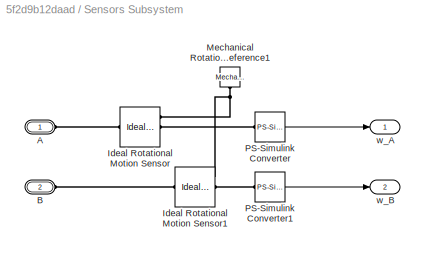
BLOCK [SubSystem] Sensors Subsystem
  Ports = [0, 2, 0, 0, 0, 2]
  RequestExecContextInheritance = off
  Variant = off
BLOCK [PMIOPort] Sensors Subsystem/A
  Port = 1
  Side = Left
BLOCK [PMIOPort] Sensors Subsystem/B
  Port = 2
  Side = Left
BLOCK [Reference] Sensors Subsystem/Ideal Rotational Motion Sensor  REF=fl_lib/Mechanical/Mechanical Sensors/Ideal Rotational
Motion Sensor
  Ports = [0, 0, 0, 0, 0, 1, 3]
  SourceBlock = fl_lib/Mechanical/Mechanical Sensors/Ideal Rotational\nMotion Sensor
  SourceProductBaseCode = SS
  SourceProductName = Simscape
  SourceType = Ideal Rotational\nMotion Sensor
BLOCK [Reference] Sensors Subsystem/Ideal Rotational Motion Sensor1  REF=fl_lib/Mechanical/Mechanical Sensors/Ideal Rotational
Motion Sensor
  Ports = [0, 0, 0, 0, 0, 1, 3]
  SourceBlock = fl_lib/Mechanical/Mechanical Sensors/Ideal Rotational\nMotion Sensor
  SourceProductBaseCode = SS
  SourceProductName = Simscape
  SourceType = Ideal Rotational\nMotion Sensor
BLOCK [Reference] Sensors Subsystem/Mechanical Rotational Reference1  REF=fl_lib/Mechanical/Rotational Elements/Mechanical
Rotational Reference
  Ports = [0, 0, 0, 0, 0, 1]
  SourceBlock = fl_lib/Mechanical/Rotational Elements/Mechanical\nRotational Reference
  SourceProductBaseCode = SS
  SourceProductName = Simscape
  SourceType = Mechanical\nRotational Reference
BLOCK [Reference] Sensors Subsystem/PS-Simulink Converter  REF=nesl_utility/PS-Simulink
Converter
  Ports = [0, 1, 0, 0, 0, 1]
  SourceBlock = nesl_utility/PS-Simulink\nConverter
  SourceProductBaseCode = SS
  SourceProductName = Simscape
  SourceType = PS-Simulink\nConverter
BLOCK [Reference] Sensors Subsystem/PS-Simulink Converter1  REF=nesl_utility/PS-Simulink
Converter
  Ports = [0, 1, 0, 0, 0, 1]
  SourceBlock = nesl_utility/PS-Simulink\nConverter
  SourceProductBaseCode = SS
  SourceProductName = Simscape
  SourceType = PS-Simulink\nConverter
BLOCK [Outport] Sensors Subsystem/w_A
  IconDisplay = Port number
BLOCK [Outport] Sensors Subsystem/w_B
  IconDisplay = Port number
  Port = 2
BLOCK [Reference] Solver Configuration  REF=nesl_utility/Solver
Configuration
  Ports = [0, 0, 0, 0, 0, 0, 1]
  SourceBlock = nesl_utility/Solver\nConfiguration
  SourceProductBaseCode = SS
  SourceProductName = Simscape
  SourceType = Solver\nConfiguration
ANNOTATION (root): <copyright redacted>
LINE Sensors Subsystem/PS-Simulink Converter1:1 -> Sensors Subsystem/w_B:1
LINE Sensors Subsystem/PS-Simulink Converter:1 -> Sensors Subsystem/w_A:1
LINE Sensors Subsystem:1 -> Scope:1
LINE Sensors Subsystem:2 -> Scope:2
PLINE Battery Pack Subsystem/+:RConn1 -- Battery Pack Subsystem/Cell1:LConn1
PLINE Battery Pack Subsystem/-:RConn1 -- Battery Pack Subsystem/Cell24:RConn1
PNET net1: Battery Pack Subsystem/Cell1/+:RConn1 -- Battery Pack Subsystem/Cell1/Capacitor:RConn1 -- Battery Pack Subsystem/Cell1/Resistor2:RConn1
PLINE Battery Pack Subsystem/Cell1/-:RConn1 -- Battery Pack Subsystem/Cell1/DC Voltage Supply:RConn1
PNET net2: Battery Pack Subsystem/Cell1/Capacitor:LConn1 -- Battery Pack Subsystem/Cell1/Resistor1:RConn1 -- Battery Pack Subsystem/Cell1/Resistor2:LConn1
PLINE Battery Pack Subsystem/Cell1/DC Voltage Supply:LConn1 -- Battery Pack Subsystem/Cell1/Resistor1:LConn1
PNET net3: Battery Pack Subsystem/Cell10/+:RConn1 -- Battery Pack Subsystem/Cell10/Capacitor:RConn1 -- Battery Pack Subsystem/Cell10/Resistor2:RConn1
PLINE Battery Pack Subsystem/Cell10/-:RConn1 -- Battery Pack Subsystem/Cell10/DC Voltage Supply:RConn1
PNET net4: Battery Pack Subsystem/Cell10/Capacitor:LConn1 -- Battery Pack Subsystem/Cell10/Resistor1:RConn1 -- Battery Pack Subsystem/Cell10/Resistor2:LConn1
PLINE Battery Pack Subsystem/Cell10/DC Voltage Supply:LConn1 -- Battery Pack Subsystem/Cell10/Resistor1:LConn1
PLINE Battery Pack Subsystem/Cell10:LConn1 -- Battery Pack Subsystem/Cell9:RConn1
PLINE Battery Pack Subsystem/Cell10:RConn1 -- Battery Pack Subsystem/Cell11:LConn1
PNET net5: Battery Pack Subsystem/Cell11/+:RConn1 -- Battery Pack Subsystem/Cell11/Capacitor:RConn1 -- Battery Pack Subsystem/Cell11/Resistor2:RConn1
PLINE Battery Pack Subsystem/Cell11/-:RConn1 -- Battery Pack Subsystem/Cell11/DC Voltage Supply:RConn1
PNET net6: Battery Pack Subsystem/Cell11/Capacitor:LConn1 -- Battery Pack Subsystem/Cell11/Resistor1:RConn1 -- Battery Pack Subsystem/Cell11/Resistor2:LConn1
PLINE Battery Pack Subsystem/Cell11/DC Voltage Supply:LConn1 -- Battery Pack Subsystem/Cell11/Resistor1:LConn1
PLINE Battery Pack Subsystem/Cell11:RConn1 -- Battery Pack Subsystem/Cell12:LConn1
PNET net7: Battery Pack Subsystem/Cell12/+:RConn1 -- Battery Pack Subsystem/Cell12/Capacitor:RConn1 -- Battery Pack Subsystem/Cell12/Resistor2:RConn1
PLINE Battery Pack Subsystem/Cell12/-:RConn1 -- Battery Pack Subsystem/Cell12/DC Voltage Supply:RConn1
PNET net8: Battery Pack Subsystem/Cell12/Capacitor:LConn1 -- Battery Pack Subsystem/Cell12/Resistor1:RConn1 -- Battery Pack Subsystem/Cell12/Resistor2:LConn1
PLINE Battery Pack Subsystem/Cell12/DC Voltage Supply:LConn1 -- Battery Pack Subsystem/Cell12/Resistor1:LConn1
PLINE Battery Pack Subsystem/Cell12:RConn1 -- Battery Pack Subsystem/Cell13:LConn1
PNET net9: Battery Pack Subsystem/Cell13/+:RConn1 -- Battery Pack Subsystem/Cell13/Capacitor:RConn1 -- Battery Pack Subsystem/Cell13/Resistor2:RConn1
PLINE Battery Pack Subsystem/Cell13/-:RConn1 -- Battery Pack Subsystem/Cell13/DC Voltage Supply:RConn1
PNET net10: Battery Pack Subsystem/Cell13/Capacitor:LConn1 -- Battery Pack Subsystem/Cell13/Resistor1:RConn1 -- Battery Pack Subsystem/Cell13/Resistor2:LConn1
PLINE Battery Pack Subsystem/Cell13/DC Voltage Supply:LConn1 -- Battery Pack Subsystem/Cell13/Resistor1:LConn1
PLINE Battery Pack Subsystem/Cell13:RConn1 -- Battery Pack Subsystem/Cell14:LConn1
PNET net11: Battery Pack Subsystem/Cell14/+:RConn1 -- Battery Pack Subsystem/Cell14/Capacitor:RConn1 -- Battery Pack Subsystem/Cell14/Resistor2:RConn1
PLINE Battery Pack Subsystem/Cell14/-:RConn1 -- Battery Pack Subsystem/Cell14/DC Voltage Supply:RConn1
PNET net12: Battery Pack Subsystem/Cell14/Capacitor:LConn1 -- Battery Pack Subsystem/Cell14/Resistor1:RConn1 -- Battery Pack Subsystem/Cell14/Resistor2:LConn1
PLINE Battery Pack Subsystem/Cell14/DC Voltage Supply:LConn1 -- Battery Pack Subsystem/Cell14/Resistor1:LConn1
PLINE Battery Pack Subsystem/Cell14:RConn1 -- Battery Pack Subsystem/Cell15:LConn1
PNET net13: Battery Pack Subsystem/Cell15/+:RConn1 -- Battery Pack Subsystem/Cell15/Capacitor:RConn1 -- Battery Pack Subsystem/Cell15/Resistor2:RConn1
PLINE Battery Pack Subsystem/Cell15/-:RConn1 -- Battery Pack Subsystem/Cell15/DC Voltage Supply:RConn1
PNET net14: Battery Pack Subsystem/Cell15/Capacitor:LConn1 -- Battery Pack Subsystem/Cell15/Resistor1:RConn1 -- Battery Pack Subsystem/Cell15/Resistor2:LConn1
PLINE Battery Pack Subsystem/Cell15/DC Voltage Supply:LConn1 -- Battery Pack Subsystem/Cell15/Resistor1:LConn1
PLINE Battery Pack Subsystem/Cell15:RConn1 -- Battery Pack Subsystem/Cell16:LConn1
PNET net15: Battery Pack Subsystem/Cell16/+:RConn1 -- Battery Pack Subsystem/Cell16/Capacitor:RConn1 -- Battery Pack Subsystem/Cell16/Resistor2:RConn1
PLINE Battery Pack Subsystem/Cell16/-:RConn1 -- Battery Pack Subsystem/Cell16/DC Voltage Supply:RConn1
PNET net16: Battery Pack Subsystem/Cell16/Capacitor:LConn1 -- Battery Pack Subsystem/Cell16/Resistor1:RConn1 -- Battery Pack Subsystem/Cell16/Resistor2:LConn1
PLINE Battery Pack Subsystem/Cell16/DC Voltage Supply:LConn1 -- Battery Pack Subsystem/Cell16/Resistor1:LConn1
PLINE Battery Pack Subsystem/Cell16:RConn1 -- Battery Pack Subsystem/Cell17:LConn1
PNET net17: Battery Pack Subsystem/Cell17/+:RConn1 -- Battery Pack Subsystem/Cell17/Capacitor:RConn1 -- Battery Pack Subsystem/Cell17/Resistor2:RConn1
PLINE Battery Pack Subsystem/Cell17/-:RConn1 -- Battery Pack Subsystem/Cell17/DC Voltage Supply:RConn1
PNET net18: Battery Pack Subsystem/Cell17/Capacitor:LConn1 -- Battery Pack Subsystem/Cell17/Resistor1:RConn1 -- Battery Pack Subsystem/Cell17/Resistor2:LConn1
PLINE Battery Pack Subsystem/Cell17/DC Voltage Supply:LConn1 -- Battery Pack Subsystem/Cell17/Resistor1:LConn1
PLINE Battery Pack Subsystem/Cell17:RConn1 -- Battery Pack Subsystem/Cell18:LConn1
PNET net19: Battery Pack Subsystem/Cell18/+:RConn1 -- Battery Pack Subsystem/Cell18/Capacitor:RConn1 -- Battery Pack Subsystem/Cell18/Resistor2:RConn1
PLINE Battery Pack Subsystem/Cell18/-:RConn1 -- Battery Pack Subsystem/Cell18/DC Voltage Supply:RConn1
PNET net20: Battery Pack Subsystem/Cell18/Capacitor:LConn1 -- Battery Pack Subsystem/Cell18/Resistor1:RConn1 -- Battery Pack Subsystem/Cell18/Resistor2:LConn1
PLINE Battery Pack Subsystem/Cell18/DC Voltage Supply:LConn1 -- Battery Pack Subsystem/Cell18/Resistor1:LConn1
PLINE Battery Pack Subsystem/Cell18:RConn1 -- Battery Pack Subsystem/Cell19:LConn1
PNET net21: Battery Pack Subsystem/Cell19/+:RConn1 -- Battery Pack Subsystem/Cell19/Capacitor:RConn1 -- Battery Pack Subsystem/Cell19/Resistor2:RConn1
PLINE Battery Pack Subsystem/Cell19/-:RConn1 -- Battery Pack Subsystem/Cell19/DC Voltage Supply:RConn1
PNET net22: Battery Pack Subsystem/Cell19/Capacitor:LConn1 -- Battery Pack Subsystem/Cell19/Resistor1:RConn1 -- Battery Pack Subsystem/Cell19/Resistor2:LConn1
PLINE Battery Pack Subsystem/Cell19/DC Voltage Supply:LConn1 -- Battery Pack Subsystem/Cell19/Resistor1:LConn1
PLINE Battery Pack Subsystem/Cell19:RConn1 -- Battery Pack Subsystem/Cell20:LConn1
PLINE Battery Pack Subsystem/Cell1:RConn1 -- Battery Pack Subsystem/Cell2:LConn1
PNET net23: Battery Pack Subsystem/Cell2/+:RConn1 -- Battery Pack Subsystem/Cell2/Capacitor:RConn1 -- Battery Pack Subsystem/Cell2/Resistor2:RConn1
PLINE Battery Pack Subsystem/Cell2/-:RConn1 -- Battery Pack Subsystem/Cell2/DC Voltage Supply:RConn1
PNET net24: Battery Pack Subsystem/Cell2/Capacitor:LConn1 -- Battery Pack Subsystem/Cell2/Resistor1:RConn1 -- Battery Pack Subsystem/Cell2/Resistor2:LConn1
PLINE Battery Pack Subsystem/Cell2/DC Voltage Supply:LConn1 -- Battery Pack Subsystem/Cell2/Resistor1:LConn1
PNET net25: Battery Pack Subsystem/Cell20/+:RConn1 -- Battery Pack Subsystem/Cell20/Capacitor:RConn1 -- Battery Pack Subsystem/Cell20/Resistor2:RConn1
PLINE Battery Pack Subsystem/Cell20/-:RConn1 -- Battery Pack Subsystem/Cell20/DC Voltage Supply:RConn1
PNET net26: Battery Pack Subsystem/Cell20/Capacitor:LConn1 -- Battery Pack Subsystem/Cell20/Resistor1:RConn1 -- Battery Pack Subsystem/Cell20/Resistor2:LConn1
PLINE Battery Pack Subsystem/Cell20/DC Voltage Supply:LConn1 -- Battery Pack Subsystem/Cell20/Resistor1:LConn1
PLINE Battery Pack Subsystem/Cell20:RConn1 -- Battery Pack Subsystem/Cell21:LConn1
PNET net27: Battery Pack Subsystem/Cell21/+:RConn1 -- Battery Pack Subsystem/Cell21/Capacitor:RConn1 -- Battery Pack Subsystem/Cell21/Resistor2:RConn1
PLINE Battery Pack Subsystem/Cell21/-:RConn1 -- Battery Pack Subsystem/Cell21/DC Voltage Supply:RConn1
PNET net28: Battery Pack Subsystem/Cell21/Capacitor:LConn1 -- Battery Pack Subsystem/Cell21/Resistor1:RConn1 -- Battery Pack Subsystem/Cell21/Resistor2:LConn1
PLINE Battery Pack Subsystem/Cell21/DC Voltage Supply:LConn1 -- Battery Pack Subsystem/Cell21/Resistor1:LConn1
PLINE Battery Pack Subsystem/Cell21:RConn1 -- Battery Pack Subsystem/Cell22:LConn1
PNET net29: Battery Pack Subsystem/Cell22/+:RConn1 -- Battery Pack Subsystem/Cell22/Capacitor:RConn1 -- Battery Pack Subsystem/Cell22/Resistor2:RConn1
PLINE Battery Pack Subsystem/Cell22/-:RConn1 -- Battery Pack Subsystem/Cell22/DC Voltage Supply:RConn1
PNET net30: Battery Pack Subsystem/Cell22/Capacitor:LConn1 -- Battery Pack Subsystem/Cell22/Resistor1:RConn1 -- Battery Pack Subsystem/Cell22/Resistor2:LConn1
PLINE Battery Pack Subsystem/Cell22/DC Voltage Supply:LConn1 -- Battery Pack Subsystem/Cell22/Resistor1:LConn1
PLINE Battery Pack Subsystem/Cell22:RConn1 -- Battery Pack Subsystem/Cell23:LConn1
PNET net31: Battery Pack Subsystem/Cell23/+:RConn1 -- Battery Pack Subsystem/Cell23/Capacitor:RConn1 -- Battery Pack Subsystem/Cell23/Resistor2:RConn1
PLINE Battery Pack Subsystem/Cell23/-:RConn1 -- Battery Pack Subsystem/Cell23/DC Voltage Supply:RConn1
PNET net32: Battery Pack Subsystem/Cell23/Capacitor:LConn1 -- Battery Pack Subsystem/Cell23/Resistor1:RConn1 -- Battery Pack Subsystem/Cell23/Resistor2:LConn1
PLINE Battery Pack Subsystem/Cell23/DC Voltage Supply:LConn1 -- Battery Pack Subsystem/Cell23/Resistor1:LConn1
PLINE Battery Pack Subsystem/Cell23:RConn1 -- Battery Pack Subsystem/Cell24:LConn1
PNET net33: Battery Pack Subsystem/Cell24/+:RConn1 -- Battery Pack Subsystem/Cell24/Capacitor:RConn1 -- Battery Pack Subsystem/Cell24/Resistor2:RConn1
PLINE Battery Pack Subsystem/Cell24/-:RConn1 -- Battery Pack Subsystem/Cell24/DC Voltage Supply:RConn1
PNET net34: Battery Pack Subsystem/Cell24/Capacitor:LConn1 -- Battery Pack Subsystem/Cell24/Resistor1:RConn1 -- Battery Pack Subsystem/Cell24/Resistor2:LConn1
PLINE Battery Pack Subsystem/Cell24/DC Voltage Supply:LConn1 -- Battery Pack Subsystem/Cell24/Resistor1:LConn1
PLINE Battery Pack Subsystem/Cell2:RConn1 -- Battery Pack Subsystem/Cell3:LConn1
PNET net35: Battery Pack Subsystem/Cell3/+:RConn1 -- Battery Pack Subsystem/Cell3/Capacitor:RConn1 -- Battery Pack Subsystem/Cell3/Resistor2:RConn1
PLINE Battery Pack Subsystem/Cell3/-:RConn1 -- Battery Pack Subsystem/Cell3/DC Voltage Supply:RConn1
PNET net36: Battery Pack Subsystem/Cell3/Capacitor:LConn1 -- Battery Pack Subsystem/Cell3/Resistor1:RConn1 -- Battery Pack Subsystem/Cell3/Resistor2:LConn1
PLINE Battery Pack Subsystem/Cell3/DC Voltage Supply:LConn1 -- Battery Pack Subsystem/Cell3/Resistor1:LConn1
PLINE Battery Pack Subsystem/Cell3:RConn1 -- Battery Pack Subsystem/Cell4:LConn1
PNET net37: Battery Pack Subsystem/Cell4/+:RConn1 -- Battery Pack Subsystem/Cell4/Capacitor:RConn1 -- Battery Pack Subsystem/Cell4/Resistor2:RConn1
PLINE Battery Pack Subsystem/Cell4/-:RConn1 -- Battery Pack Subsystem/Cell4/DC Voltage Supply:RConn1
PNET net38: Battery Pack Subsystem/Cell4/Capacitor:LConn1 -- Battery Pack Subsystem/Cell4/Resistor1:RConn1 -- Battery Pack Subsystem/Cell4/Resistor2:LConn1
PLINE Battery Pack Subsystem/Cell4/DC Voltage Supply:LConn1 -- Battery Pack Subsystem/Cell4/Resistor1:LConn1
PLINE Battery Pack Subsystem/Cell4:RConn1 -- Battery Pack Subsystem/Cell5:LConn1
PNET net39: Battery Pack Subsystem/Cell5/+:RConn1 -- Battery Pack Subsystem/Cell5/Capacitor:RConn1 -- Battery Pack Subsystem/Cell5/Resistor2:RConn1
PLINE Battery Pack Subsystem/Cell5/-:RConn1 -- Battery Pack Subsystem/Cell5/DC Voltage Supply:RConn1
PNET net40: Battery Pack Subsystem/Cell5/Capacitor:LConn1 -- Battery Pack Subsystem/Cell5/Resistor1:RConn1 -- Battery Pack Subsystem/Cell5/Resistor2:LConn1
PLINE Battery Pack Subsystem/Cell5/DC Voltage Supply:LConn1 -- Battery Pack Subsystem/Cell5/Resistor1:LConn1
PLINE Battery Pack Subsystem/Cell5:RConn1 -- Battery Pack Subsystem/Cell6:LConn1
PNET net41: Battery Pack Subsystem/Cell6/+:RConn1 -- Battery Pack Subsystem/Cell6/Capacitor:RConn1 -- Battery Pack Subsystem/Cell6/Resistor2:RConn1
PLINE Battery Pack Subsystem/Cell6/-:RConn1 -- Battery Pack Subsystem/Cell6/DC Voltage Supply:RConn1
PNET net42: Battery Pack Subsystem/Cell6/Capacitor:LConn1 -- Battery Pack Subsystem/Cell6/Resistor1:RConn1 -- Battery Pack Subsystem/Cell6/Resistor2:LConn1
PLINE Battery Pack Subsystem/Cell6/DC Voltage Supply:LConn1 -- Battery Pack Subsystem/Cell6/Resistor1:LConn1
PLINE Battery Pack Subsystem/Cell6:RConn1 -- Battery Pack Subsystem/Cell7:LConn1
PNET net43: Battery Pack Subsystem/Cell7/+:RConn1 -- Battery Pack Subsystem/Cell7/Capacitor:RConn1 -- Battery Pack Subsystem/Cell7/Resistor2:RConn1
PLINE Battery Pack Subsystem/Cell7/-:RConn1 -- Battery Pack Subsystem/Cell7/DC Voltage Supply:RConn1
PNET net44: Battery Pack Subsystem/Cell7/Capacitor:LConn1 -- Battery Pack Subsystem/Cell7/Resistor1:RConn1 -- Battery Pack Subsystem/Cell7/Resistor2:LConn1
PLINE Battery Pack Subsystem/Cell7/DC Voltage Supply:LConn1 -- Battery Pack Subsystem/Cell7/Resistor1:LConn1
PLINE Battery Pack Subsystem/Cell7:RConn1 -- Battery Pack Subsystem/Cell8:LConn1
PNET net45: Battery Pack Subsystem/Cell8/+:RConn1 -- Battery Pack Subsystem/Cell8/Capacitor:RConn1 -- Battery Pack Subsystem/Cell8/Resistor2:RConn1
PLINE Battery Pack Subsystem/Cell8/-:RConn1 -- Battery Pack Subsystem/Cell8/DC Voltage Supply:RConn1
PNET net46: Battery Pack Subsystem/Cell8/Capacitor:LConn1 -- Battery Pack Subsystem/Cell8/Resistor1:RConn1 -- Battery Pack Subsystem/Cell8/Resistor2:LConn1
PLINE Battery Pack Subsystem/Cell8/DC Voltage Supply:LConn1 -- Battery Pack Subsystem/Cell8/Resistor1:LConn1
PLINE Battery Pack Subsystem/Cell8:RConn1 -- Battery Pack Subsystem/Cell9:LConn1
PNET net47: Battery Pack Subsystem/Cell9/+:RConn1 -- Battery Pack Subsystem/Cell9/Capacitor:RConn1 -- Battery Pack Subsystem/Cell9/Resistor2:RConn1
PLINE Battery Pack Subsystem/Cell9/-:RConn1 -- Battery Pack Subsystem/Cell9/DC Voltage Supply:RConn1
PNET net48: Battery Pack Subsystem/Cell9/Capacitor:LConn1 -- Battery Pack Subsystem/Cell9/Resistor1:RConn1 -- Battery Pack Subsystem/Cell9/Resistor2:LConn1
PLINE Battery Pack Subsystem/Cell9/DC Voltage Supply:LConn1 -- Battery Pack Subsystem/Cell9/Resistor1:LConn1
PLINE Battery Pack Subsystem:RConn1 -- DC Motor:LConn1
PNET net49: Battery Pack Subsystem:RConn2 -- DC Motor:RConn1 -- Electrical Reference:LConn1
PNET net50: DC Motor:LConn2 -- Gear Subsystem:LConn1 -- Sensors Subsystem:LConn1
PNET net51: DC Motor:RConn2 -- Gear Subsystem:LConn2 -- Mechanical Rotational Reference:LConn1 -- Solver Configuration:RConn1
PLINE Gear Subsystem/A:RConn1 -- Gear Subsystem/Gear Box:LConn1
PNET net52: Gear Subsystem/B:RConn1 -- Gear Subsystem/Gear Box:RConn1 -- Gear Subsystem/Inertia:LConn1 -- Gear Subsystem/Rotational Damper:LConn1
PLINE Gear Subsystem/Ref:RConn1 -- Gear Subsystem/Rotational Damper:RConn1
PLINE Gear Subsystem:RConn1 -- Sensors Subsystem:LConn2
PLINE Sensors Subsystem/A:RConn1 -- Sensors Subsystem/Ideal Rotational Motion Sensor:LConn1
PLINE Sensors Subsystem/B:RConn1 -- Sensors Subsystem/Ideal Rotational Motion Sensor1:LConn1
PNET net53: Sensors Subsystem/Ideal Rotational Motion Sensor1:RConn1 -- Sensors Subsystem/Ideal Rotational Motion Sensor:RConn1 -- Sensors Subsystem/Mechanical Rotational Reference1:LConn1
PLINE Sensors Subsystem/Ideal Rotational Motion Sensor1:RConn2 -- Sensors Subsystem/PS-Simulink Converter1:LConn1
PLINE Sensors Subsystem/Ideal Rotational Motion Sensor:RConn2 -- Sensors Subsystem/PS-Simulink Converter:LConn1
note: PNET lines group multi-terminal physical nets as a canonical sorted terminal list (undirected conserving connections); 2-terminal nets keep the pairwise PLINE form
